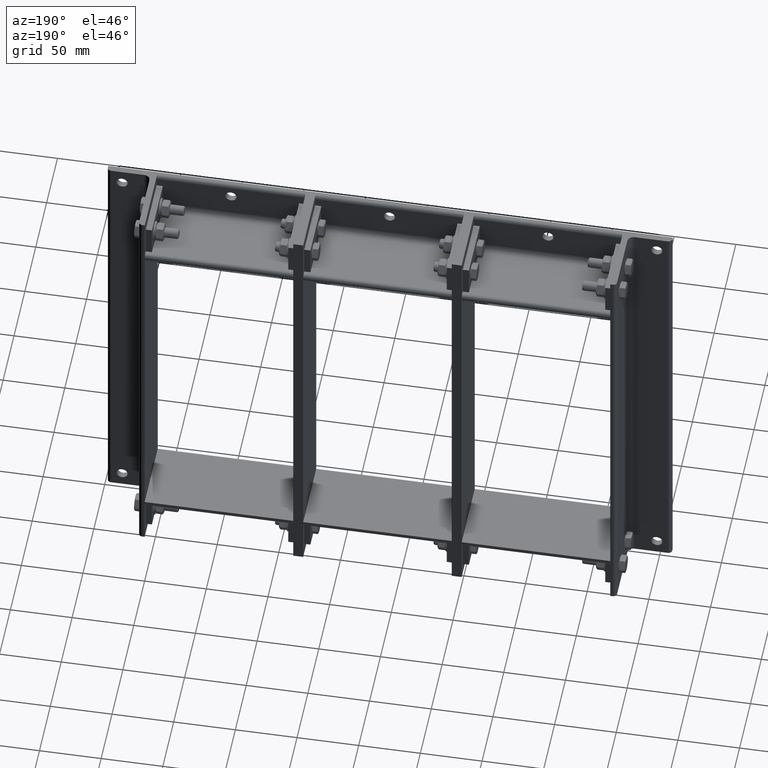
[diagram: clean part render]
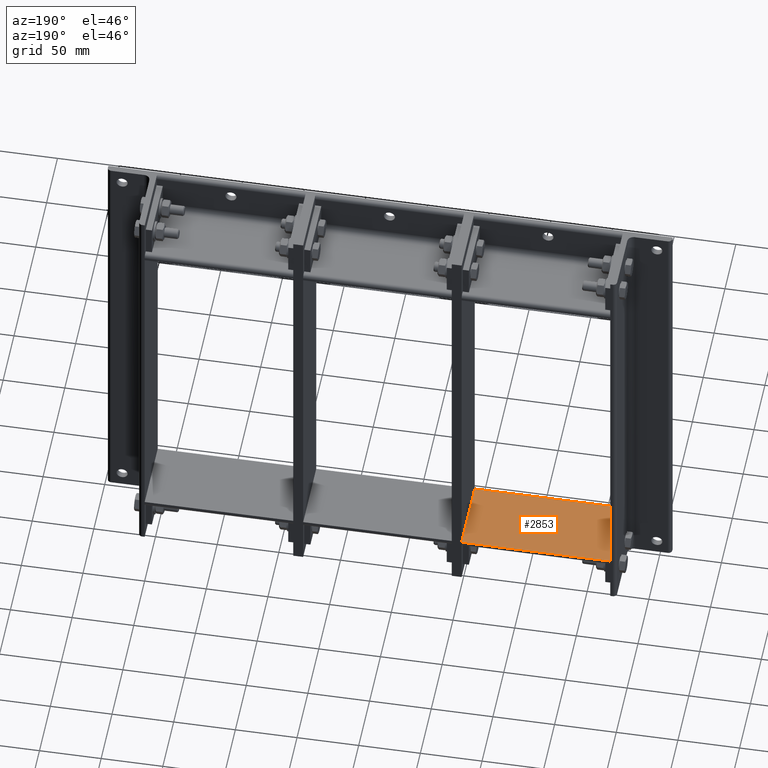
[diagram: same view with one face highlighted and labeled with its STEP entity id]
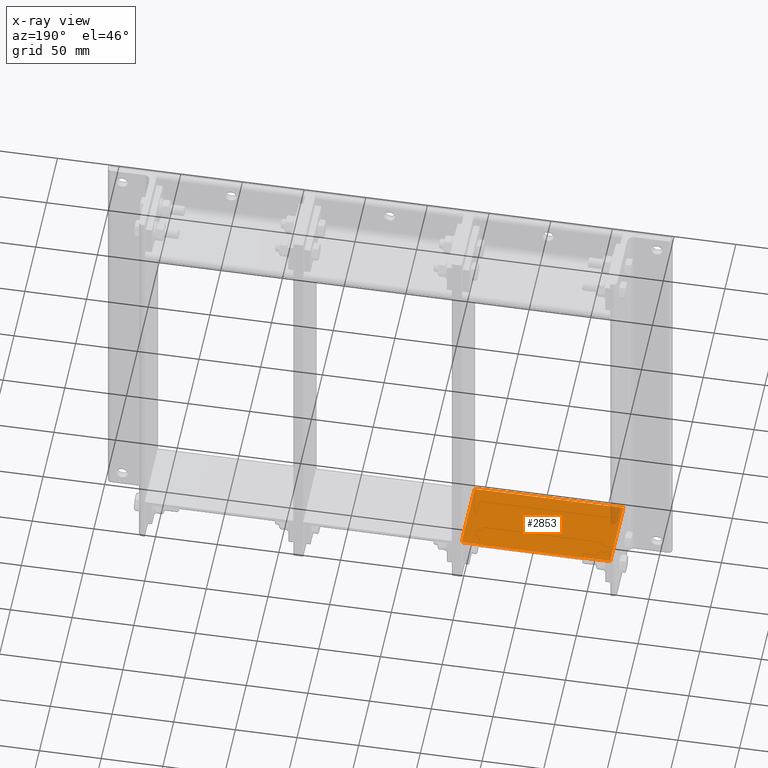
[diagram: x-ray of the same camera — body ghosted, the highlighted face saturated]
A machine part, auxiliary view. The second image highlights one B-rep face of the part: STEP entity #2853.
The next image is the same camera in x-ray: the body ghosted, the highlighted face saturated — about 2% of this face is hidden behind the body in this view.
In plain terms, the highlighted planar face has unit normal (-0, -0, 1).
Its self-contained STEP definition (entity closure, byte-faithful):
#2681=CARTESIAN_POINT('',(0.0,0.0,0.0));
#2682=VERTEX_POINT('',#2681);
#2689=CARTESIAN_POINT('',(-2.220446E-014,60.0,0.0));
#2690=VERTEX_POINT('',#2689);
#2691=CARTESIAN_POINT('',(-2.220446E-014,60.0,0.0));
#2692=DIRECTION('',(0.0,-1.0,0.0));
#2693=VECTOR('',#2692,60.0);
#2694=LINE('',#2691,#2693);
#2695=EDGE_CURVE('',#2690,#2682,#2694,.T.);
#2761=CARTESIAN_POINT('',(-2.220446E-014,60.0,120.5));
#2762=VERTEX_POINT('',#2761);
#2769=CARTESIAN_POINT('',(0.0,0.0,120.5));
#2770=VERTEX_POINT('',#2769);
#2771=CARTESIAN_POINT('',(-3.155444E-030,0.0,120.5));
#2772=DIRECTION('',(0.0,1.0,0.0));
#2773=VECTOR('',#2772,60.0);
#2774=LINE('',#2771,#2773);
#2775=EDGE_CURVE('',#2770,#2762,#2774,.T.);
#2807=CARTESIAN_POINT('',(-2.220446E-014,60.0,0.0));
#2808=DIRECTION('',(0.0,0.0,1.0));
#2809=VECTOR('',#2808,120.5);
#2810=LINE('',#2807,#2809);
#2811=EDGE_CURVE('',#2690,#2762,#2810,.T.);
#2823=CARTESIAN_POINT('',(0.0,0.0,0.0));
#2824=DIRECTION('',(0.0,0.0,1.0));
#2825=VECTOR('',#2824,120.5);
#2826=LINE('',#2823,#2825);
#2827=EDGE_CURVE('',#2682,#2770,#2826,.T.);
#2842=CARTESIAN_POINT('',(0.0,0.0,0.0));
#2843=DIRECTION('',(-1.0,0.0,0.0));
#2844=DIRECTION('',(0.0,0.0,1.0));
#2845=AXIS2_PLACEMENT_3D('',#2842,#2843,#2844);
#2846=PLANE('',#2845);
#2847=ORIENTED_EDGE('',*,*,#2775,.T.);
#2848=ORIENTED_EDGE('',*,*,#2811,.F.);
#2849=ORIENTED_EDGE('',*,*,#2695,.T.);
#2850=ORIENTED_EDGE('',*,*,#2827,.T.);
#2851=EDGE_LOOP('',(#2847,#2848,#2849,#2850));
#2852=FACE_OUTER_BOUND('',#2851,.T.);
#2853=ADVANCED_FACE('',(#2852),#2846,.T.);